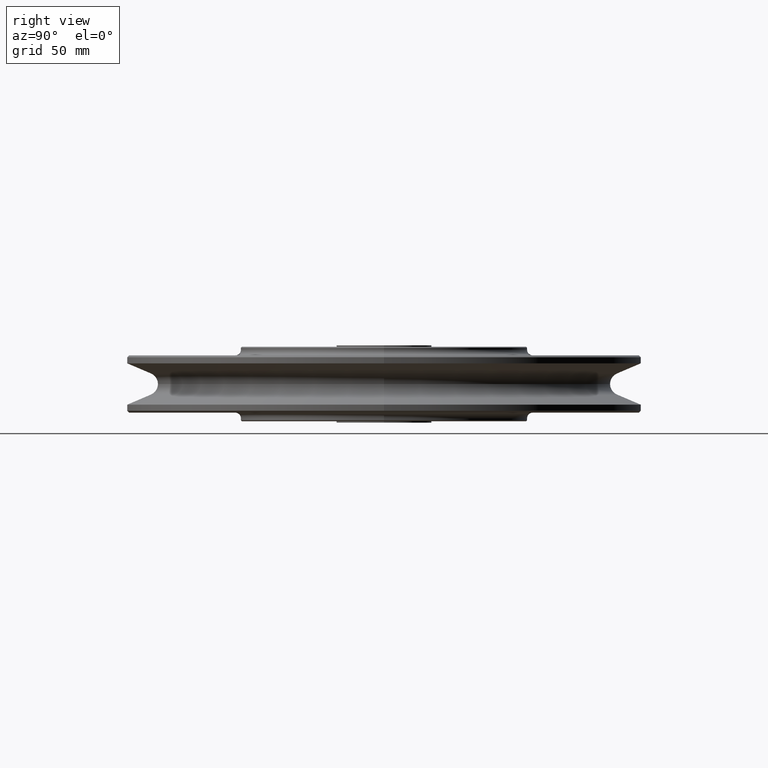
[diagram: clean part render]
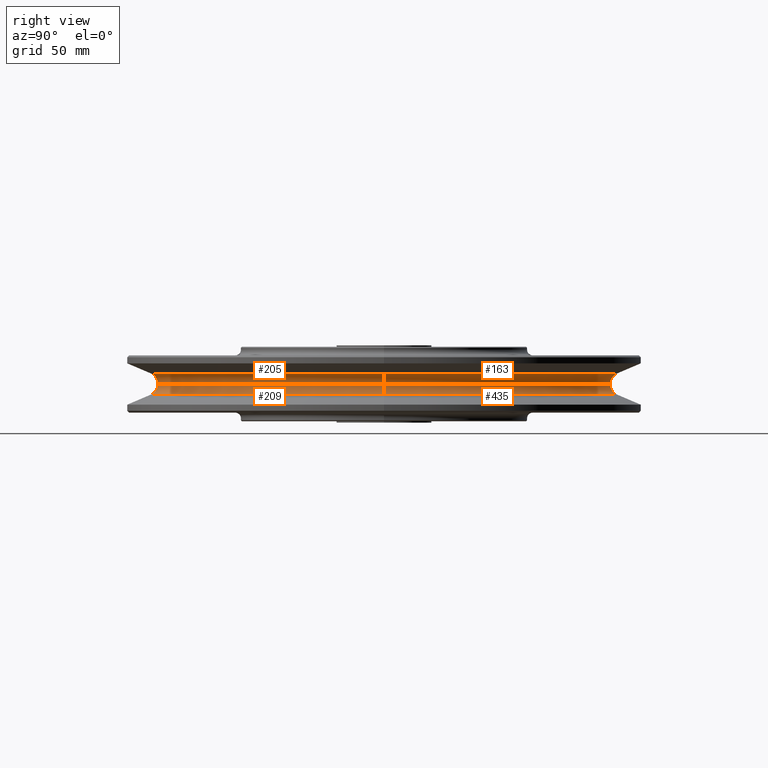
[diagram: same view with one multi-face feature highlighted, each face labeled with its STEP entity id]
A machine part, right view. The highlighted faces form ONE feature: a constant-radius fillet chain: 4 tangent blend faces with common blend radius 6 mm. The faces share edges in the B-rep.
Their STEP definitions:
[1] entity #163 (Torus):
#163=ADVANCED_FACE('',(#457),#458,.F.);
#457=FACE_OUTER_BOUND('',#907,.T.);
#458=TOROIDAL_SURFACE('',#908,124.4999999596,5.99999995959999);
#907=EDGE_LOOP('',(#1351,#1352,#1353,#1354));
#908=AXIS2_PLACEMENT_3D('',#1355,#1356,#1357);
#1351=ORIENTED_EDGE('',*,*,#2816,.F.);
#1352=ORIENTED_EDGE('',*,*,#2817,.T.);
#1353=ORIENTED_EDGE('',*,*,#2818,.F.);
#1354=ORIENTED_EDGE('',*,*,#2819,.T.);
#1355=CARTESIAN_POINT('',(0.0,0.0,0.0));
#1356=DIRECTION('',(0.0,0.0,1.0));
#1357=DIRECTION('',(1.0,0.0,0.0));
#2816=EDGE_CURVE('',#3411,#3412,#3413,.T.);
#2817=EDGE_CURVE('',#3411,#3414,#3415,.T.);
#2818=EDGE_CURVE('',#3416,#3414,#3417,.T.);
#2819=EDGE_CURVE('',#3416,#3412,#3418,.T.);
#3411=VERTEX_POINT('',#4316);
#3412=VERTEX_POINT('',#4317);
#3413=CIRCLE('',#4318,118.5);
#3414=VERTEX_POINT('',#4319);
#3415=CIRCLE('',#4320,5.99999995959999);
#3416=VERTEX_POINT('',#4321);
#3417=CIRCLE('',#4322,122.203899);
#3418=CIRCLE('',#4323,5.99999995959999);
#4316=CARTESIAN_POINT('',(-118.5,1.39940656052786E-014,7.34788074540837E-016));
#4317=CARTESIAN_POINT('',(118.5,-1.39940656052786E-014,7.34788074540837E-016));
#4318=AXIS2_PLACEMENT_3D('',#10430,#10431,#10432);
#4319=CARTESIAN_POINT('',(-122.203899,1.49656613753676E-014,5.543277));
#4320=AXIS2_PLACEMENT_3D('',#10433,#10434,#10435);
#4321=CARTESIAN_POINT('',(122.203899,0.0,5.543277));
#4322=AXIS2_PLACEMENT_3D('',#10436,#10437,#10438);
#4323=AXIS2_PLACEMENT_3D('',#10439,#10440,#10441);
#10430=CARTESIAN_POINT('',(0.0,0.0,7.34788074540837E-016));
#10431=DIRECTION('',(-0.0,0.0,-1.0));
#10432=DIRECTION('',(-1.0,0.0,0.0));
#10433=CARTESIAN_POINT('',(-124.4999999596,1.5246852644437E-014,0.0));
#10434=DIRECTION('',(-1.22464679914735E-016,-1.0,0.0));
#10435=DIRECTION('',(-1.0,1.22464679914735E-016,-0.0));
#10436=CARTESIAN_POINT('',(0.0,0.0,5.543277));
#10437=DIRECTION('',(0.0,0.0,1.0));
#10438=DIRECTION('',(1.0,0.0,0.0));
#10439=CARTESIAN_POINT('',(124.4999999596,-1.5246852644437E-014,0.0));
#10440=DIRECTION('',(-1.22464679914735E-016,-1.0,0.0));
#10441=DIRECTION('',(1.0,-1.22464679914735E-016,0.0));
[2] entity #435 (Torus):
#435=ADVANCED_FACE('',(#893),#894,.F.);
#893=FACE_OUTER_BOUND('',#1343,.T.);
#894=TOROIDAL_SURFACE('',#1344,124.4999999596,5.99999995959999);
#1343=EDGE_LOOP('',(#2799,#2800,#2801,#2802));
#1344=AXIS2_PLACEMENT_3D('',#2803,#2804,#2805);
#2799=ORIENTED_EDGE('',*,*,#2816,.T.);
#2800=ORIENTED_EDGE('',*,*,#2928,.T.);
#2801=ORIENTED_EDGE('',*,*,#2933,.T.);
#2802=ORIENTED_EDGE('',*,*,#2926,.T.);
#2803=CARTESIAN_POINT('',(0.0,0.0,0.0));
#2804=DIRECTION('',(0.0,0.0,1.0));
#2805=DIRECTION('',(1.0,0.0,0.0));
#2816=EDGE_CURVE('',#3411,#3412,#3413,.T.);
#2926=EDGE_CURVE('',#3603,#3411,#3604,.T.);
#2928=EDGE_CURVE('',#3412,#3605,#3607,.T.);
#2933=EDGE_CURVE('',#3605,#3603,#3614,.T.);
#3411=VERTEX_POINT('',#4316);
#3412=VERTEX_POINT('',#4317);
#3413=CIRCLE('',#4318,118.5);
#3603=VERTEX_POINT('',#6022);
#3604=CIRCLE('',#6023,5.99999995959999);
#3605=VERTEX_POINT('',#6024);
#3607=CIRCLE('',#6026,5.99999995959999);
#3614=CIRCLE('',#6035,122.203899);
#4316=CARTESIAN_POINT('',(-118.5,1.39940656052786E-014,7.34788074540837E-016));
#4317=CARTESIAN_POINT('',(118.5,-1.39940656052786E-014,7.34788074540837E-016));
#4318=AXIS2_PLACEMENT_3D('',#10430,#10431,#10432);
#6022=CARTESIAN_POINT('',(-122.203899,1.49656613753676E-014,-5.543277));
#6023=AXIS2_PLACEMENT_3D('',#10579,#10580,#10581);
#6024=CARTESIAN_POINT('',(122.203899,0.0,-5.543277));
#6026=AXIS2_PLACEMENT_3D('',#10585,#10586,#10587);
#6035=AXIS2_PLACEMENT_3D('',#10593,#10594,#10595);
#10430=CARTESIAN_POINT('',(0.0,0.0,7.34788074540837E-016));
#10431=DIRECTION('',(-0.0,0.0,-1.0));
#10432=DIRECTION('',(-1.0,0.0,0.0));
#10579=CARTESIAN_POINT('',(-124.4999999596,1.5246852644437E-014,0.0));
#10580=DIRECTION('',(-1.22464679914735E-016,-1.0,0.0));
#10581=DIRECTION('',(-1.0,1.22464679914735E-016,-0.0));
#10585=CARTESIAN_POINT('',(124.4999999596,-1.5246852644437E-014,0.0));
#10586=DIRECTION('',(-1.22464679914735E-016,-1.0,0.0));
#10587=DIRECTION('',(1.0,-1.22464679914735E-016,0.0));
#10593=CARTESIAN_POINT('',(0.0,0.0,-5.543277));
#10594=DIRECTION('',(0.0,0.0,1.0));
#10595=DIRECTION('',(1.0,0.0,0.0));
[3] entity #209 (Torus):
#209=ADVANCED_FACE('',(#526),#527,.F.);
#526=FACE_OUTER_BOUND('',#976,.T.);
#527=TOROIDAL_SURFACE('',#977,124.4999999596,5.99999995959999);
#976=EDGE_LOOP('',(#1535,#1536,#1537,#1538));
#977=AXIS2_PLACEMENT_3D('',#1539,#1540,#1541);
#1535=ORIENTED_EDGE('',*,*,#2919,.T.);
#1536=ORIENTED_EDGE('',*,*,#2926,.F.);
#1537=ORIENTED_EDGE('',*,*,#2927,.T.);
#1538=ORIENTED_EDGE('',*,*,#2928,.F.);
#1539=CARTESIAN_POINT('',(0.0,0.0,0.0));
#1540=DIRECTION('',(0.0,0.0,1.0));
#1541=DIRECTION('',(1.0,0.0,0.0));
#2919=EDGE_CURVE('',#3412,#3411,#3594,.T.);
#2926=EDGE_CURVE('',#3603,#3411,#3604,.T.);
#2927=EDGE_CURVE('',#3603,#3605,#3606,.T.);
#2928=EDGE_CURVE('',#3412,#3605,#3607,.T.);
#3411=VERTEX_POINT('',#4316);
#3412=VERTEX_POINT('',#4317);
#3594=CIRCLE('',#6011,118.5);
#3603=VERTEX_POINT('',#6022);
#3604=CIRCLE('',#6023,5.99999995959999);
#3605=VERTEX_POINT('',#6024);
#3606=CIRCLE('',#6025,122.203899);
#3607=CIRCLE('',#6026,5.99999995959999);
#4316=CARTESIAN_POINT('',(-118.5,1.39940656052786E-014,7.34788074540837E-016));
#4317=CARTESIAN_POINT('',(118.5,-1.39940656052786E-014,7.34788074540837E-016));
#6011=AXIS2_PLACEMENT_3D('',#10568,#10569,#10570);
#6022=CARTESIAN_POINT('',(-122.203899,1.49656613753676E-014,-5.543277));
#6023=AXIS2_PLACEMENT_3D('',#10579,#10580,#10581);
#6024=CARTESIAN_POINT('',(122.203899,0.0,-5.543277));
#6025=AXIS2_PLACEMENT_3D('',#10582,#10583,#10584);
#6026=AXIS2_PLACEMENT_3D('',#10585,#10586,#10587);
#10568=CARTESIAN_POINT('',(0.0,0.0,7.34788074540837E-016));
#10569=DIRECTION('',(-0.0,0.0,-1.0));
#10570=DIRECTION('',(-1.0,0.0,0.0));
#10579=CARTESIAN_POINT('',(-124.4999999596,1.5246852644437E-014,0.0));
#10580=DIRECTION('',(-1.22464679914735E-016,-1.0,0.0));
#10581=DIRECTION('',(-1.0,1.22464679914735E-016,-0.0));
#10582=CARTESIAN_POINT('',(0.0,0.0,-5.543277));
#10583=DIRECTION('',(0.0,0.0,1.0));
#10584=DIRECTION('',(1.0,0.0,0.0));
#10585=CARTESIAN_POINT('',(124.4999999596,-1.5246852644437E-014,0.0));
#10586=DIRECTION('',(-1.22464679914735E-016,-1.0,0.0));
#10587=DIRECTION('',(1.0,-1.22464679914735E-016,0.0));
[4] entity #205 (Torus):
#205=ADVANCED_FACE('',(#520),#521,.F.);
#520=FACE_OUTER_BOUND('',#970,.T.);
#521=TOROIDAL_SURFACE('',#971,124.4999999596,5.99999995959999);
#970=EDGE_LOOP('',(#1519,#1520,#1521,#1522));
#971=AXIS2_PLACEMENT_3D('',#1523,#1524,#1525);
#1519=ORIENTED_EDGE('',*,*,#2919,.F.);
#1520=ORIENTED_EDGE('',*,*,#2819,.F.);
#1521=ORIENTED_EDGE('',*,*,#2920,.F.);
#1522=ORIENTED_EDGE('',*,*,#2817,.F.);
#1523=CARTESIAN_POINT('',(0.0,0.0,0.0));
#1524=DIRECTION('',(0.0,0.0,1.0));
#1525=DIRECTION('',(1.0,0.0,0.0));
#2817=EDGE_CURVE('',#3411,#3414,#3415,.T.);
#2819=EDGE_CURVE('',#3416,#3412,#3418,.T.);
#2919=EDGE_CURVE('',#3412,#3411,#3594,.T.);
#2920=EDGE_CURVE('',#3414,#3416,#3595,.T.);
#3411=VERTEX_POINT('',#4316);
#3412=VERTEX_POINT('',#4317);
#3414=VERTEX_POINT('',#4319);
#3415=CIRCLE('',#4320,5.99999995959999);
#3416=VERTEX_POINT('',#4321);
#3418=CIRCLE('',#4323,5.99999995959999);
#3594=CIRCLE('',#6011,118.5);
#3595=CIRCLE('',#6012,122.203899);
#4316=CARTESIAN_POINT('',(-118.5,1.39940656052786E-014,7.34788074540837E-016));
#4317=CARTESIAN_POINT('',(118.5,-1.39940656052786E-014,7.34788074540837E-016));
#4319=CARTESIAN_POINT('',(-122.203899,1.49656613753676E-014,5.543277));
#4320=AXIS2_PLACEMENT_3D('',#10433,#10434,#10435);
#4321=CARTESIAN_POINT('',(122.203899,0.0,5.543277));
#4323=AXIS2_PLACEMENT_3D('',#10439,#10440,#10441);
#6011=AXIS2_PLACEMENT_3D('',#10568,#10569,#10570);
#6012=AXIS2_PLACEMENT_3D('',#10571,#10572,#10573);
#10433=CARTESIAN_POINT('',(-124.4999999596,1.5246852644437E-014,0.0));
#10434=DIRECTION('',(-1.22464679914735E-016,-1.0,0.0));
#10435=DIRECTION('',(-1.0,1.22464679914735E-016,-0.0));
#10439=CARTESIAN_POINT('',(124.4999999596,-1.5246852644437E-014,0.0));
#10440=DIRECTION('',(-1.22464679914735E-016,-1.0,0.0));
#10441=DIRECTION('',(1.0,-1.22464679914735E-016,0.0));
#10568=CARTESIAN_POINT('',(0.0,0.0,7.34788074540837E-016));
#10569=DIRECTION('',(-0.0,0.0,-1.0));
#10570=DIRECTION('',(-1.0,0.0,0.0));
#10571=CARTESIAN_POINT('',(0.0,0.0,5.543277));
#10572=DIRECTION('',(0.0,0.0,1.0));
#10573=DIRECTION('',(1.0,0.0,0.0));